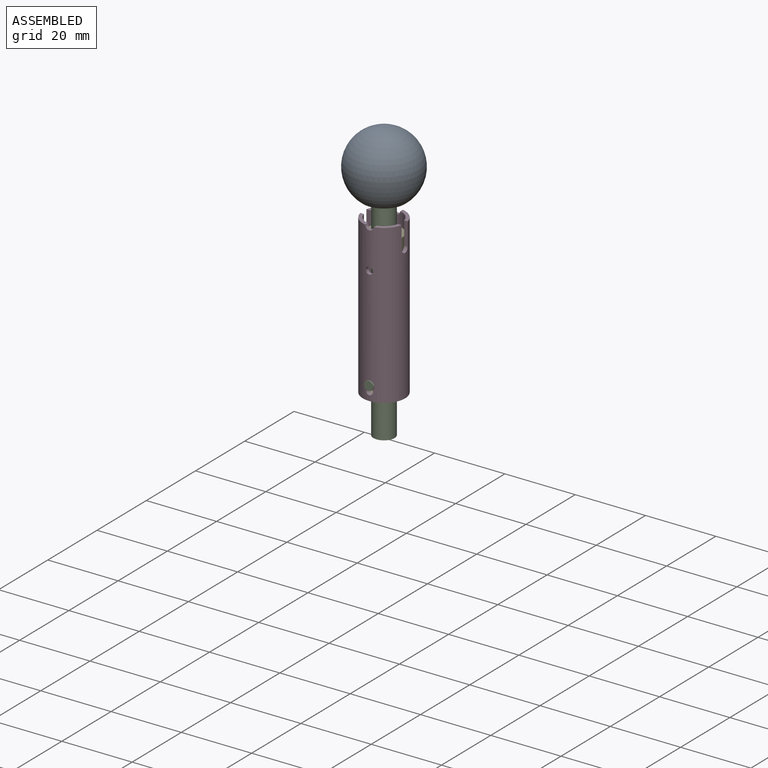
[diagram: assembled view]
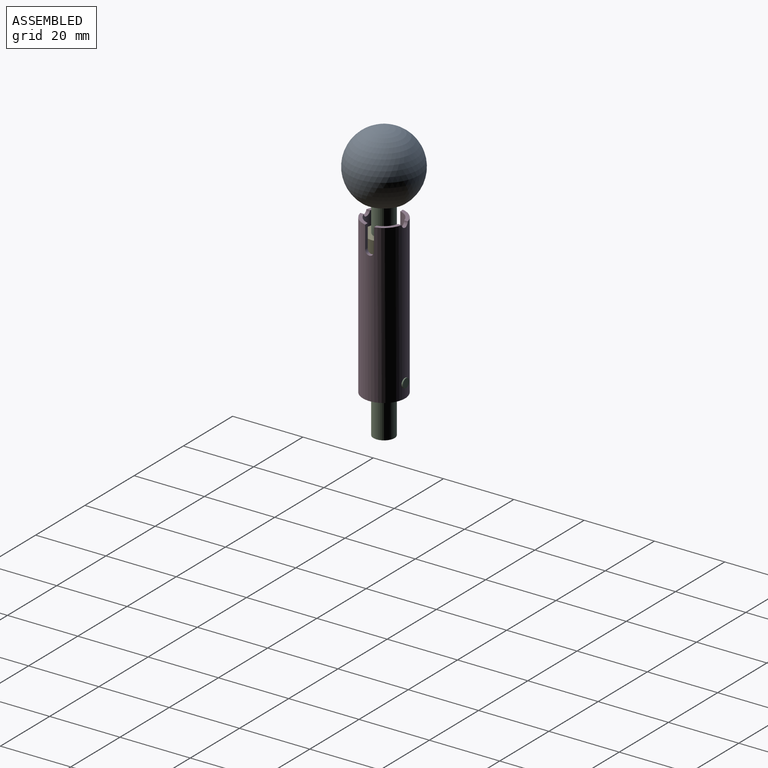
[diagram: assembled view, second angle]
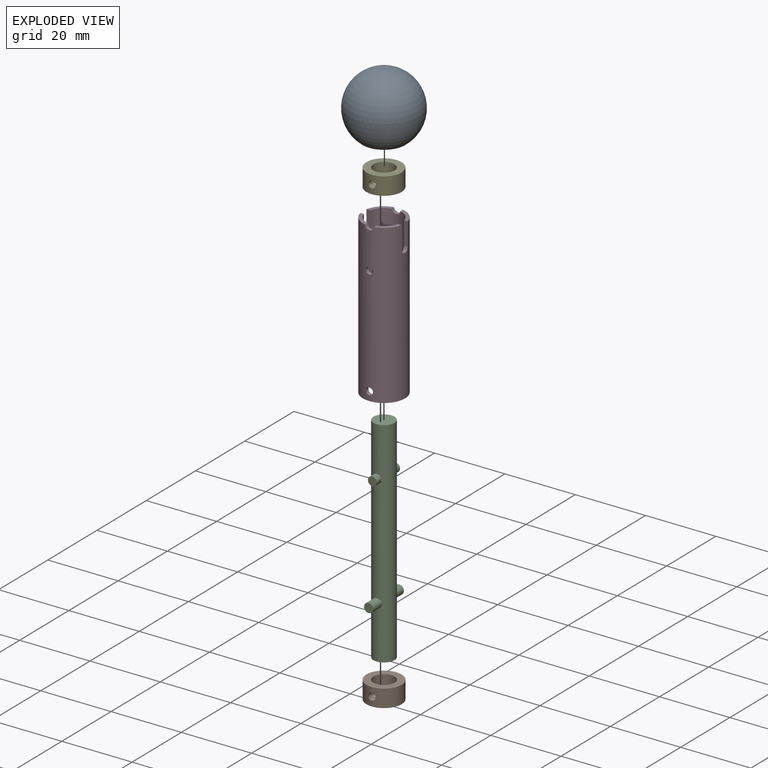
[diagram: exploded view]
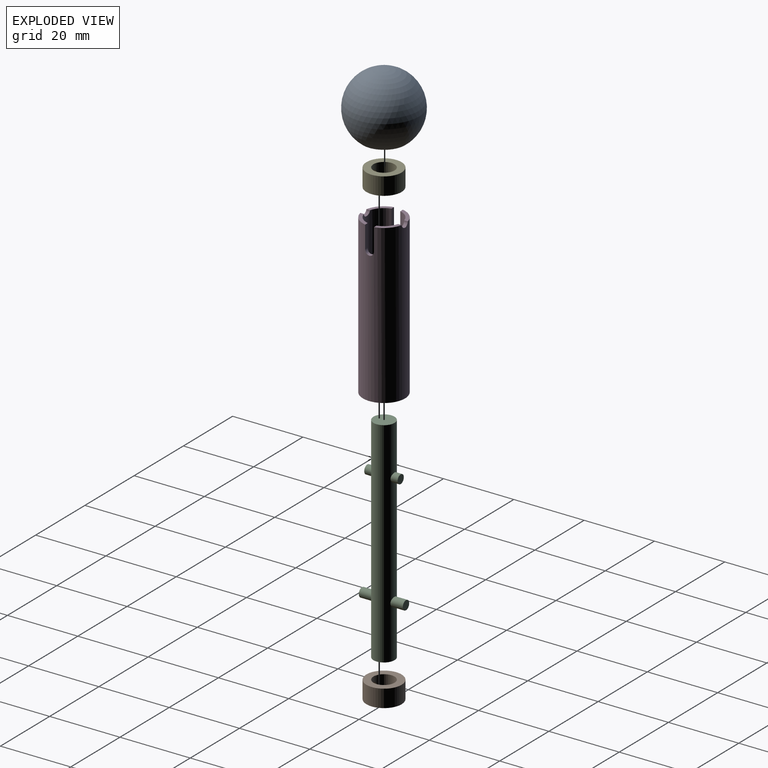
[diagram: exploded view, second angle]
ASSEMBLY  parts=5 mates=4
PART A: 5 faces, bbox 20x18x20 mm
  f0: sphere r=10mm, area 1131mm2, adj f1
  f1: plane 12x12mm, normal (0,-1,0), area 93.5mm2, adj f0,f4
  f2: cone r=0mm half-angle=60deg, axis (0,-1,0), area 15.5mm2, adj f3
  f3: cylinder r=2.07mm len=8.57mm, axis (0,-1,0), area 111.3mm2, adj f2,f4
  f4: cone r=2.07mm half-angle=45deg, axis (0,-1,0), area 8.8mm2, adj f1,f3
PART B: 5 faces, bbox 10x10x5 mm
  f0: cylinder r=3mm len=6mm, axis (0,0,-1), area 91.1mm2, adj f2,f3,f4
  f1: cylinder r=5mm len=10mm, axis (0,0,-1), area 153.9mm2, adj f2,f3,f4
  f2: plane 10x10mm, normal (0,0,1), area 50.3mm2, adj f0,f1
  f3: plane 10x10mm, normal (0,0,-1), area 50.3mm2, adj f0,f1
  f4: cylinder r=1mm len=2.17mm, axis (0,-1,0), area 12.8mm2, adj f0,f1
PART C: 11 faces, bbox 12.5x61x6 mm
  f0: cylinder r=3mm len=61mm, axis (0,1,0), area 1128.9mm2, adj f1,f2,f4,f5,f8,f9
  f1: plane 6x6mm, normal (0,-1,0), area 28.3mm2, adj f0
  f2: plane 6x6mm, normal (0,1,0), area 28.3mm2, adj f0
  f3: plane 2.5x2.5mm, normal (-1,0,0), area 4.9mm2, adj f4
  f4: cylinder r=1.25mm len=2.5mm, axis (-1,0,0), area 14.8mm2, adj f0,f3
  f5: cylinder r=1.25mm len=2.5mm, axis (-1,0,0), area 14.8mm2, adj f0,f6
  f6: plane 2.5x2.5mm, normal (1,0,0), area 4.9mm2, adj f5
  f7: plane 2.6x2.6mm, normal (-1,0,0), area 5.3mm2, adj f8
  f8: cylinder r=1.3mm len=3.55mm, axis (-1,0,0), area 27.7mm2, adj f0,f7
  f9: cylinder r=1.3mm len=3.55mm, axis (-1,0,0), area 27.7mm2, adj f0,f10
  f10: plane 2.6x2.6mm, normal (1,0,0), area 5.3mm2, adj f9
PART D: 17 faces, bbox 12x12x45 mm
  f0: plane 4.63x4.62mm, normal (0,0,1), area 6.1mm2, adj f3,f4,f9,f16
  f1: plane 4.63x4.62mm, normal (0,0,1), area 6.1mm2, adj f3,f4,f10,f15
  f2: plane 4.63x4.62mm, normal (0,0,1), area 6.1mm2, adj f3,f4,f14,f16
  f3: cylinder r=5mm len=45mm, axis (0,0,-1), area 1366.1mm2, adj f0,f1,f2,f5,f6,f7,f8,f9
  f4: cylinder r=6mm len=45mm, axis (0,0,-1), area 1649mm2, adj f0,f1,f2,f5,f6,f7,f8,f9
  f5: plane 4.63x4.62mm, normal (0,0,1), area 6.1mm2, adj f3,f4,f13,f15
  f6: plane 12x12mm, normal (0,0,-1), area 34.6mm2, adj f3,f4
  f7: cylinder r=1mm len=2mm, axis (0,-1,0), area 6.3mm2, adj f3,f4
  f8: cylinder r=1mm len=2mm, axis (0,-1,0), area 6.3mm2, adj f3,f4
  f9: plane 6.36x1.03mm, normal (0,1,0), area 6.5mm2, adj f0,f3,f4,f11
  f10: plane 6.36x1.03mm, normal (0,-1,0), area 6.5mm2, adj f1,f3,f4,f11
  f11: cylinder r=1.25mm len=2.5mm, axis (-1,0,0), area 4mm2, adj f3,f4,f9,f10
  f12: cylinder r=1.25mm len=2.5mm, axis (-1,0,0), area 4mm2, adj f3,f4,f13,f14
  f13: plane 6.36x1.03mm, normal (0,-1,0), area 6.5mm2, adj f3,f4,f5,f12
  f14: plane 6.36x1.03mm, normal (0,1,0), area 6.5mm2, adj f2,f3,f4,f12
  f15: cylinder r=1.25mm len=2.48mm, axis (0,-1,0), area 3.7mm2, adj f1,f3,f4,f5
  f16: cylinder r=1.25mm len=2.48mm, axis (0,-1,0), area 3.7mm2, adj f0,f2,f3,f4
PART E: same geometry as B
PLACE A rot(axis=(1,0,0),90deg) t=(-30.29,-20.09,57.65)mm
PLACE B rot(axis=(0,0,-1),180deg) t=(-30.29,-20.09,7.65)mm
PLACE C rot(axis=(-0.58,-0.58,0.58),120deg) t=(-30.29,-20.09,-3.35)mm
PLACE D rot(axis=(0,0,-1),180deg) t=(-30.29,-20.09,7.65)mm
PLACE E rot(axis=(0,0,-1),180deg) t=(-30.29,-20.09,43.65)mm
MATE fastened E.f1 <-> D.f4  axis (0,0,1) through (-30.29,-20.09,48.65)mm
MATE fastened C.f0 <-> A.f3  axis (0,0,-1) through (-30.29,-20.09,57.65)mm
MATE fastened B.f1 <-> D.f3  axis (0,0,-1) through (-30.29,-20.09,7.65)mm
MATE slider C.f0 <-> D.f3  axis (0,0,1) through (-30.29,-20.09,57.65)mm
